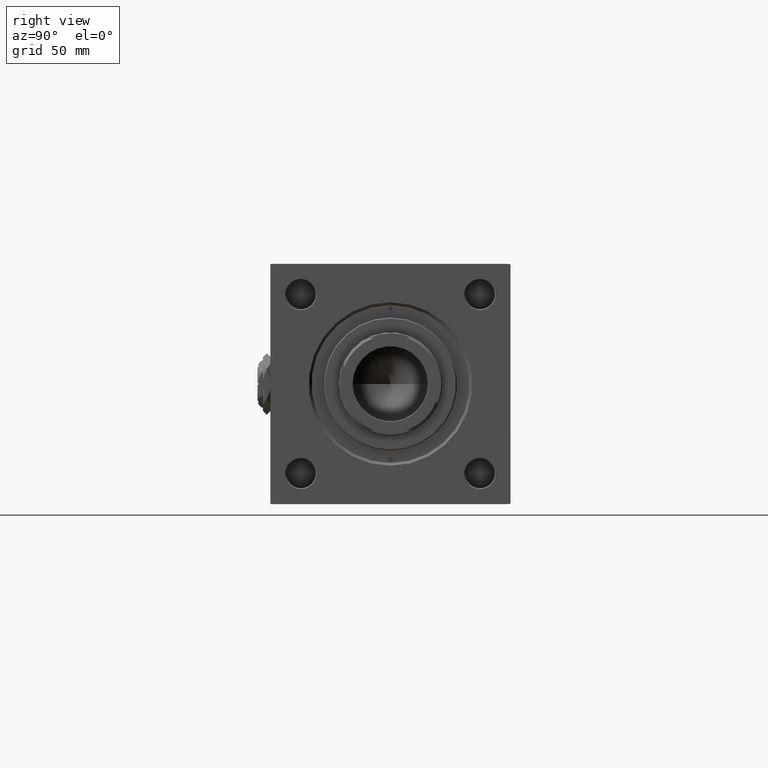
[diagram: clean part render]
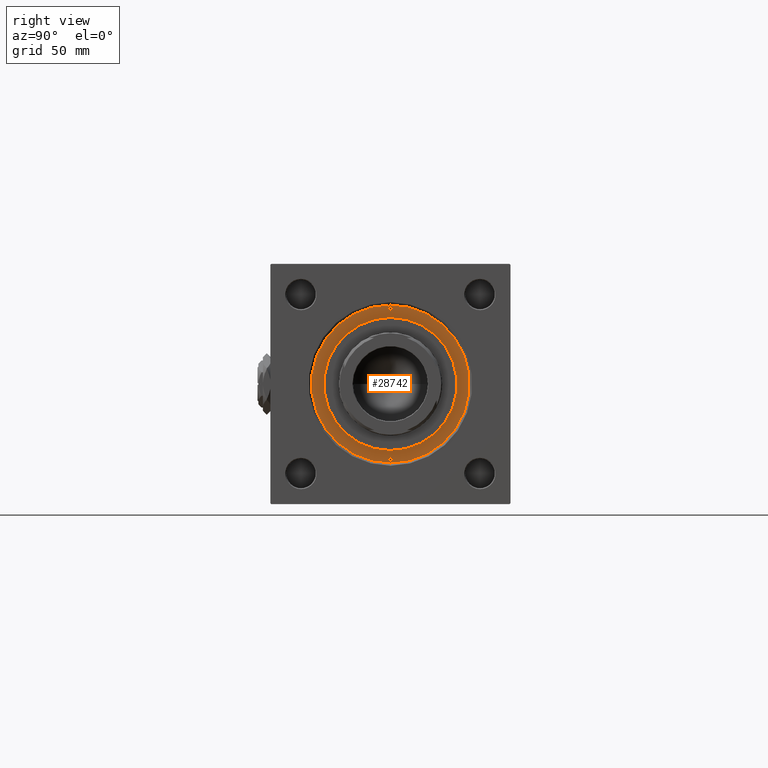
[diagram: same view with one face highlighted and labeled with its STEP entity id]
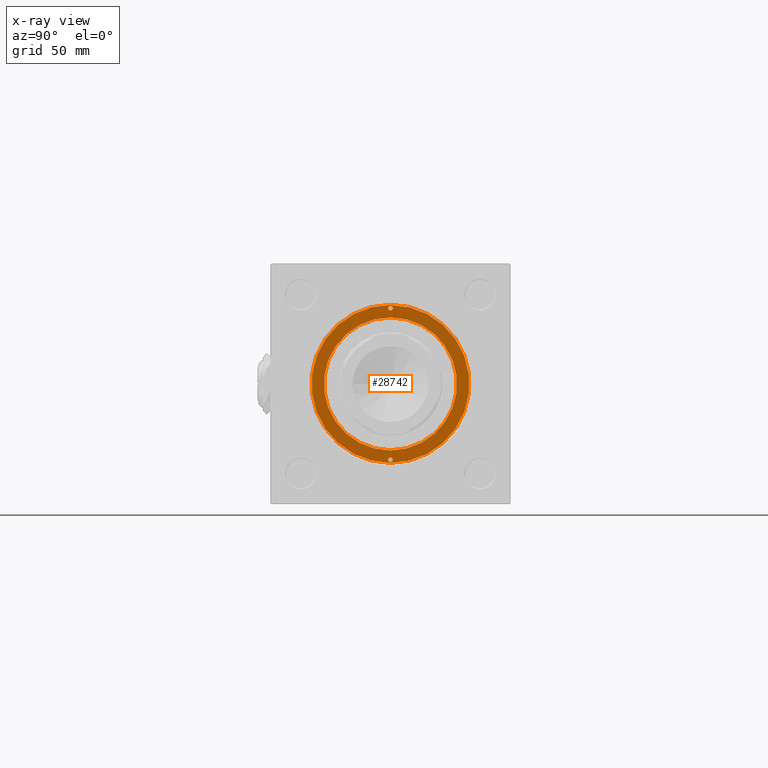
[diagram: x-ray of the same camera — body ghosted, the highlighted face saturated]
A machine part, right view. The second image highlights one B-rep face of the part: STEP entity #28742.
The next image is the same camera in x-ray: the body ghosted, the highlighted face saturated — about 0% of this face is hidden behind the body in this view.
In plain terms, the highlighted planar face has unit normal (1, 0, 0).
Its self-contained STEP definition (entity closure, byte-faithful):
#316 = AXIS2_PLACEMENT_3D ( 'NONE', #44606, #704, #48629 ) ;
#704 = DIRECTION ( 'NONE',  ( 0.000000000000000000, 0.000000000000000000, 1.000000000000000000 ) ) ;
#1559 = DIRECTION ( 'NONE',  ( 0.000000000000000000, 0.000000000000000000, 1.000000000000000000 ) ) ;
#1685 = FACE_BOUND ( 'NONE', #46355, .T. ) ;
#2712 = ORIENTED_EDGE ( 'NONE', *, *, #40101, .F. ) ;
#3504 = CIRCLE ( 'NONE', #19744, 1.249999999999994227 ) ;
#5654 = CARTESIAN_POINT ( 'NONE',  ( -41.00000000000000000, 0.000000000000000000, 28.69999999999999929 ) ) ;
#5849 = DIRECTION ( 'NONE',  ( 0.000000000000000000, 0.000000000000000000, 1.000000000000000000 ) ) ;
#5960 = DIRECTION ( 'NONE',  ( 1.000000000000000000, 0.000000000000000000, -0.000000000000000000 ) ) ;
#6603 = CIRCLE ( 'NONE', #13432, 1.249999999999994227 ) ;
#8272 = CARTESIAN_POINT ( 'NONE',  ( 0.000000000000000000, 0.000000000000000000, 28.69999999999999929 ) ) ;
#8806 = AXIS2_PLACEMENT_3D ( 'NONE', #45632, #24247, #37073 ) ;
#8948 = CARTESIAN_POINT ( 'NONE',  ( -36.00000000000000000, 0.000000000000000000, 28.69999999999999929 ) ) ;
#8949 = AXIS2_PLACEMENT_3D ( 'NONE', #45990, #1559, #21650 ) ;
#9400 = DIRECTION ( 'NONE',  ( 0.000000000000000000, 0.000000000000000000, 1.000000000000000000 ) ) ;
#10184 = CIRCLE ( 'NONE', #43495, 42.75000000000000000 ) ;
#10328 = VERTEX_POINT ( 'NONE', #22652 ) ;
#10354 = EDGE_CURVE ( 'NONE', #44974, #10939, #28990, .T. ) ;
#10378 = CARTESIAN_POINT ( 'NONE',  ( 39.75000000000000000, 1.530808498934193050E-16, 28.69999999999999929 ) ) ;
#10550 = CIRCLE ( 'NONE', #316, 42.75000000000000000 ) ;
#10606 = CARTESIAN_POINT ( 'NONE',  ( 0.000000000000000000, 0.000000000000000000, 28.69999999999999929 ) ) ;
#10673 = EDGE_CURVE ( 'NONE', #39979, #10328, #10184, .T. ) ;
#10939 = VERTEX_POINT ( 'NONE', #28283 ) ;
#11401 = EDGE_LOOP ( 'NONE', ( #11749, #44775 ) ) ;
#11749 = ORIENTED_EDGE ( 'NONE', *, *, #10354, .F. ) ;
#13432 = AXIS2_PLACEMENT_3D ( 'NONE', #14680, #5849, #18685 ) ;
#14680 = CARTESIAN_POINT ( 'NONE',  ( -41.00000000000000000, 0.000000000000000000, 28.69999999999999929 ) ) ;
#15884 = ORIENTED_EDGE ( 'NONE', *, *, #28086, .T. ) ;
#17419 = VERTEX_POINT ( 'NONE', #10378 ) ;
#17493 = PLANE ( 'NONE',  #19155 ) ;
#17933 = EDGE_CURVE ( 'NONE', #23375, #44038, #3504, .T. ) ;
#18685 = DIRECTION ( 'NONE',  ( 1.000000000000000000, 0.000000000000000000, 0.000000000000000000 ) ) ;
#19155 = AXIS2_PLACEMENT_3D ( 'NONE', #33804, #50649, #5960 ) ;
#19744 = AXIS2_PLACEMENT_3D ( 'NONE', #5654, #9400, #38293 ) ;
#21455 = CARTESIAN_POINT ( 'NONE',  ( -42.25000000000000000, 1.530808498934193050E-16, 28.69999999999999929 ) ) ;
#21650 = DIRECTION ( 'NONE',  ( 1.000000000000000000, 0.000000000000000000, 0.000000000000000000 ) ) ;
#22652 = CARTESIAN_POINT ( 'NONE',  ( 42.75000000000000000, 5.235365066354935472E-15, 28.69999999999999929 ) ) ;
#23375 = VERTEX_POINT ( 'NONE', #44984 ) ;
#24247 = DIRECTION ( 'NONE',  ( 0.000000000000000000, 0.000000000000000000, 1.000000000000000000 ) ) ;
#27429 = VERTEX_POINT ( 'NONE', #48813 ) ;
#28086 = EDGE_CURVE ( 'NONE', #10328, #39979, #10550, .T. ) ;
#28283 = CARTESIAN_POINT ( 'NONE',  ( 36.00000000000000000, 4.408728476930470856E-15, 28.69999999999999929 ) ) ;
#28374 = DIRECTION ( 'NONE',  ( 0.000000000000000000, 0.000000000000000000, 1.000000000000000000 ) ) ;
#28624 = CIRCLE ( 'NONE', #8949, 1.249999999999994227 ) ;
#28742 = ADVANCED_FACE ( 'NONE', ( #50397, #1685, #49876, #38082 ), #17493, .T. ) ;
#28990 = CIRCLE ( 'NONE', #40108, 36.00000000000000000 ) ;
#31136 = ORIENTED_EDGE ( 'NONE', *, *, #17933, .F. ) ;
#32627 = ORIENTED_EDGE ( 'NONE', *, *, #10673, .T. ) ;
#33597 = CIRCLE ( 'NONE', #8806, 36.00000000000000000 ) ;
#33804 = CARTESIAN_POINT ( 'NONE',  ( 0.000000000000000000, 0.000000000000000000, 28.69999999999999929 ) ) ;
#34041 = ORIENTED_EDGE ( 'NONE', *, *, #37086, .F. ) ;
#34638 = EDGE_CURVE ( 'NONE', #17419, #27429, #28624, .T. ) ;
#37073 = DIRECTION ( 'NONE',  ( 1.000000000000000000, 0.000000000000000000, 0.000000000000000000 ) ) ;
#37086 = EDGE_CURVE ( 'NONE', #27429, #17419, #43231, .T. ) ;
#37690 = DIRECTION ( 'NONE',  ( 0.000000000000000000, 0.000000000000000000, 1.000000000000000000 ) ) ;
#37816 = EDGE_LOOP ( 'NONE', ( #32627, #15884 ) ) ;
#38082 = FACE_OUTER_BOUND ( 'NONE', #37816, .T. ) ;
#38293 = DIRECTION ( 'NONE',  ( 1.000000000000000000, 0.000000000000000000, 0.000000000000000000 ) ) ;
#38311 = EDGE_LOOP ( 'NONE', ( #31136, #2712 ) ) ;
#38996 = AXIS2_PLACEMENT_3D ( 'NONE', #44434, #28374, #48190 ) ;
#39609 = CARTESIAN_POINT ( 'NONE',  ( -42.75000000000000000, 0.000000000000000000, 28.69999999999999929 ) ) ;
#39979 = VERTEX_POINT ( 'NONE', #39609 ) ;
#40101 = EDGE_CURVE ( 'NONE', #44038, #23375, #6603, .T. ) ;
#40108 = AXIS2_PLACEMENT_3D ( 'NONE', #10606, #46471, #46733 ) ;
#40647 = DIRECTION ( 'NONE',  ( 1.000000000000000000, 0.000000000000000000, 0.000000000000000000 ) ) ;
#43231 = CIRCLE ( 'NONE', #38996, 1.249999999999994227 ) ;
#43495 = AXIS2_PLACEMENT_3D ( 'NONE', #8272, #37690, #40647 ) ;
#44038 = VERTEX_POINT ( 'NONE', #21455 ) ;
#44434 = CARTESIAN_POINT ( 'NONE',  ( 41.00000000000000000, 0.000000000000000000, 28.69999999999999929 ) ) ;
#44606 = CARTESIAN_POINT ( 'NONE',  ( 0.000000000000000000, 0.000000000000000000, 28.69999999999999929 ) ) ;
#44775 = ORIENTED_EDGE ( 'NONE', *, *, #49843, .F. ) ;
#44974 = VERTEX_POINT ( 'NONE', #8948 ) ;
#44984 = CARTESIAN_POINT ( 'NONE',  ( -39.75000000000000711, 0.000000000000000000, 28.69999999999999929 ) ) ;
#45632 = CARTESIAN_POINT ( 'NONE',  ( 0.000000000000000000, 0.000000000000000000, 28.69999999999999929 ) ) ;
#45990 = CARTESIAN_POINT ( 'NONE',  ( 41.00000000000000000, 0.000000000000000000, 28.69999999999999929 ) ) ;
#46355 = EDGE_LOOP ( 'NONE', ( #34041, #51206 ) ) ;
#46471 = DIRECTION ( 'NONE',  ( 0.000000000000000000, 0.000000000000000000, 1.000000000000000000 ) ) ;
#46733 = DIRECTION ( 'NONE',  ( 1.000000000000000000, 0.000000000000000000, 0.000000000000000000 ) ) ;
#48190 = DIRECTION ( 'NONE',  ( 1.000000000000000000, 0.000000000000000000, 0.000000000000000000 ) ) ;
#48629 = DIRECTION ( 'NONE',  ( 1.000000000000000000, 0.000000000000000000, 0.000000000000000000 ) ) ;
#48813 = CARTESIAN_POINT ( 'NONE',  ( 42.24999999999999289, 0.000000000000000000, 28.69999999999999929 ) ) ;
#49843 = EDGE_CURVE ( 'NONE', #10939, #44974, #33597, .T. ) ;
#49876 = FACE_BOUND ( 'NONE', #11401, .T. ) ;
#50397 = FACE_BOUND ( 'NONE', #38311, .T. ) ;
#50649 = DIRECTION ( 'NONE',  ( 0.000000000000000000, 0.000000000000000000, 1.000000000000000000 ) ) ;
#51206 = ORIENTED_EDGE ( 'NONE', *, *, #34638, .F. ) ;